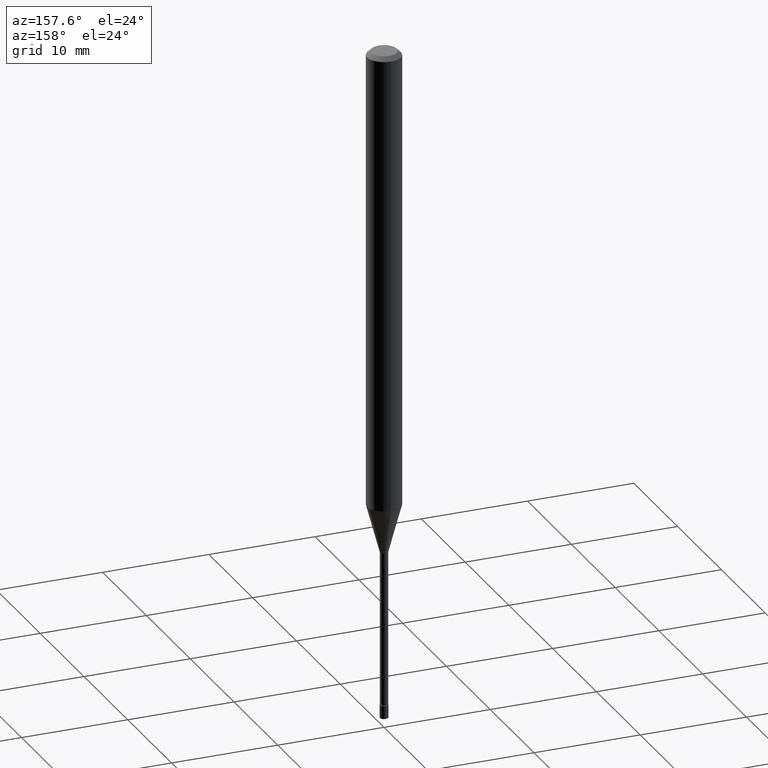
[diagram: clean part render]
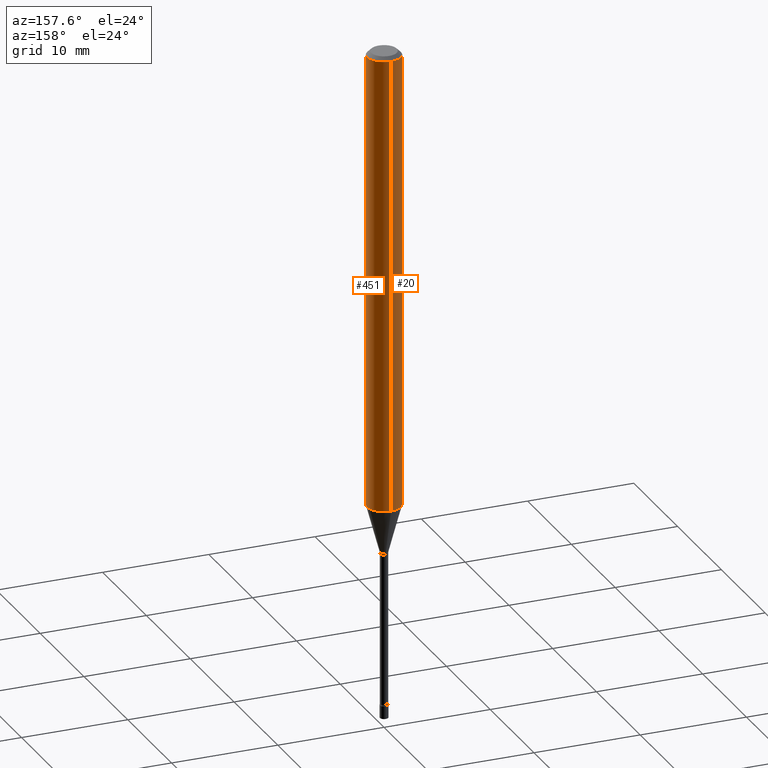
[diagram: same view with one multi-face feature highlighted, each face labeled with its STEP entity id]
A machine part, auxiliary view. The highlighted faces form ONE feature: a constant-radius fillet chain: 2 tangent blend faces with common blend radius 1.5875 mm. The faces share edges in the B-rep.
Their STEP definitions:
[1] entity #20 (Cylinder):
#16 = EDGE_LOOP ( 'NONE', ( #302, #21, #221, #185 ) ) ;
#20 = ADVANCED_FACE ( 'NONE', ( #160 ), #113, .T. ) ;
#21 = ORIENTED_EDGE ( 'NONE', *, *, #411, .T. ) ;
#32 = DIRECTION ( 'NONE',  ( -6.982962677686265922E-15, -1.000000000000000000, 4.370956789862821150E-15 ) ) ;
#38 = CARTESIAN_POINT ( 'NONE',  ( 3.668215972589017463E-31, -5.237203730476496640E-17, -0.01500000000000003067 ) ) ;
#42 = CARTESIAN_POINT ( 'NONE',  ( 4.440892098501039328E-16, 0.06249999999999404643, -1.701048163777073130 ) ) ;
#81 = LINE ( 'NONE', #148, #174 ) ;
#88 = DIRECTION ( 'NONE',  ( -6.982962677686265922E-15, -1.000000000000000000, 3.483106191921935554E-15 ) ) ;
#97 = AXIS2_PLACEMENT_3D ( 'NONE', #271, #432, #246 ) ;
#102 = CARTESIAN_POINT ( 'NONE',  ( 4.440892098501044258E-16, 0.06249999999999995143, -0.01500000000000024751 ) ) ;
#113 = CYLINDRICAL_SURFACE ( 'NONE', #97, 0.06250000000000000000 ) ;
#139 = VERTEX_POINT ( 'NONE', #288 ) ;
#146 = DIRECTION ( 'NONE',  ( -2.445477315059340608E-29, 3.491469153650990726E-15, 1.000000000000000000 ) ) ;
#148 = CARTESIAN_POINT ( 'NONE',  ( -4.364351673553916201E-16, -0.06250000000000000000, 2.182168221031869204E-16 ) ) ;
#160 = FACE_OUTER_BOUND ( 'NONE', #16, .T. ) ;
#161 = DIRECTION ( 'NONE',  ( -2.445477315059340608E-29, 3.491469153650990726E-15, 1.000000000000000000 ) ) ;
#167 = CIRCLE ( 'NONE', #427, 0.06250000000000000000 ) ;
#171 = LINE ( 'NONE', #327, #258 ) ;
#173 = CIRCLE ( 'NONE', #439, 0.06250000000000000000 ) ;
#174 = VECTOR ( 'NONE', #232, 39.37007874015748143 ) ;
#177 = EDGE_CURVE ( 'NONE', #235, #139, #81, .T. ) ;
#180 = VERTEX_POINT ( 'NONE', #102 ) ;
#185 = ORIENTED_EDGE ( 'NONE', *, *, #268, .F. ) ;
#196 = VERTEX_POINT ( 'NONE', #42 ) ;
#221 = ORIENTED_EDGE ( 'NONE', *, *, #177, .T. ) ;
#232 = DIRECTION ( 'NONE',  ( -2.445477315059340608E-29, 3.491469153650990726E-15, 1.000000000000000000 ) ) ;
#235 = VERTEX_POINT ( 'NONE', #424 ) ;
#246 = DIRECTION ( 'NONE',  ( -6.982962677686265922E-15, -1.000000000000000000, 3.491469153650990726E-15 ) ) ;
#249 = CARTESIAN_POINT ( 'NONE',  ( 4.159874696340177059E-29, -5.939157192702308277E-15, -1.701048163777072908 ) ) ;
#258 = VECTOR ( 'NONE', #487, 39.37007874015748143 ) ;
#268 = EDGE_CURVE ( 'NONE', #180, #139, #167, .T. ) ;
#271 = CARTESIAN_POINT ( 'NONE',  ( 0.000000000000000000, 0.000000000000000000, 0.000000000000000000 ) ) ;
#288 = CARTESIAN_POINT ( 'NONE',  ( -4.364351673553912750E-16, -0.06250000000000005551, -0.01499999999999981209 ) ) ;
#302 = ORIENTED_EDGE ( 'NONE', *, *, #320, .F. ) ;
#320 = EDGE_CURVE ( 'NONE', #196, #180, #171, .T. ) ;
#327 = CARTESIAN_POINT ( 'NONE',  ( 4.440892098500625669E-16, 0.06250000000000000000, -2.182168221031869204E-16 ) ) ;
#411 = EDGE_CURVE ( 'NONE', #196, #235, #173, .T. ) ;
#424 = CARTESIAN_POINT ( 'NONE',  ( -4.364351673553500570E-16, -0.06250000000000595357, -1.701048163777072464 ) ) ;
#427 = AXIS2_PLACEMENT_3D ( 'NONE', #38, #161, #88 ) ;
#432 = DIRECTION ( 'NONE',  ( -2.445477315059340608E-29, 3.491469153650990726E-15, 1.000000000000000000 ) ) ;
#439 = AXIS2_PLACEMENT_3D ( 'NONE', #249, #146, #32 ) ;
#487 = DIRECTION ( 'NONE',  ( -2.445477315059340608E-29, 3.491469153650990726E-15, 1.000000000000000000 ) ) ;
[2] entity #451 (Cylinder):
#42 = CARTESIAN_POINT ( 'NONE',  ( 4.440892098501039328E-16, 0.06249999999999404643, -1.701048163777073130 ) ) ;
#67 = ORIENTED_EDGE ( 'NONE', *, *, #320, .T. ) ;
#79 = CYLINDRICAL_SURFACE ( 'NONE', #278, 0.06250000000000000000 ) ;
#81 = LINE ( 'NONE', #148, #174 ) ;
#101 = CIRCLE ( 'NONE', #393, 0.06250000000000000000 ) ;
#102 = CARTESIAN_POINT ( 'NONE',  ( 4.440892098501044258E-16, 0.06249999999999995143, -0.01500000000000024751 ) ) ;
#104 = EDGE_CURVE ( 'NONE', #235, #196, #276, .T. ) ;
#139 = VERTEX_POINT ( 'NONE', #288 ) ;
#148 = CARTESIAN_POINT ( 'NONE',  ( -4.364351673553916201E-16, -0.06250000000000000000, 2.182168221031869204E-16 ) ) ;
#165 = DIRECTION ( 'NONE',  ( -2.445477315059340608E-29, 3.491469153650990726E-15, 1.000000000000000000 ) ) ;
#171 = LINE ( 'NONE', #327, #258 ) ;
#174 = VECTOR ( 'NONE', #232, 39.37007874015748143 ) ;
#177 = EDGE_CURVE ( 'NONE', #235, #139, #81, .T. ) ;
#180 = VERTEX_POINT ( 'NONE', #102 ) ;
#181 = EDGE_LOOP ( 'NONE', ( #375, #67, #358, #280 ) ) ;
#196 = VERTEX_POINT ( 'NONE', #42 ) ;
#200 = DIRECTION ( 'NONE',  ( -6.982962677686265922E-15, -1.000000000000000000, 3.483106191921935554E-15 ) ) ;
#232 = DIRECTION ( 'NONE',  ( -2.445477315059340608E-29, 3.491469153650990726E-15, 1.000000000000000000 ) ) ;
#235 = VERTEX_POINT ( 'NONE', #424 ) ;
#258 = VECTOR ( 'NONE', #487, 39.37007874015748143 ) ;
#276 = CIRCLE ( 'NONE', #338, 0.06250000000000000000 ) ;
#277 = CARTESIAN_POINT ( 'NONE',  ( 3.668215972589017463E-31, -5.237203730476496640E-17, -0.01500000000000003067 ) ) ;
#278 = AXIS2_PLACEMENT_3D ( 'NONE', #481, #347, #299 ) ;
#280 = ORIENTED_EDGE ( 'NONE', *, *, #177, .F. ) ;
#288 = CARTESIAN_POINT ( 'NONE',  ( -4.364351673553912750E-16, -0.06250000000000005551, -0.01499999999999981209 ) ) ;
#299 = DIRECTION ( 'NONE',  ( -6.982962677686265922E-15, -1.000000000000000000, 3.491469153650990726E-15 ) ) ;
#320 = EDGE_CURVE ( 'NONE', #196, #180, #171, .T. ) ;
#326 = CARTESIAN_POINT ( 'NONE',  ( 4.159874696340177059E-29, -5.939157192702308277E-15, -1.701048163777072908 ) ) ;
#327 = CARTESIAN_POINT ( 'NONE',  ( 4.440892098500625669E-16, 0.06250000000000000000, -2.182168221031869204E-16 ) ) ;
#338 = AXIS2_PLACEMENT_3D ( 'NONE', #326, #484, #488 ) ;
#347 = DIRECTION ( 'NONE',  ( -2.445477315059340608E-29, 3.491469153650990726E-15, 1.000000000000000000 ) ) ;
#358 = ORIENTED_EDGE ( 'NONE', *, *, #400, .F. ) ;
#375 = ORIENTED_EDGE ( 'NONE', *, *, #104, .T. ) ;
#393 = AXIS2_PLACEMENT_3D ( 'NONE', #277, #165, #200 ) ;
#400 = EDGE_CURVE ( 'NONE', #139, #180, #101, .T. ) ;
#424 = CARTESIAN_POINT ( 'NONE',  ( -4.364351673553500570E-16, -0.06250000000000595357, -1.701048163777072464 ) ) ;
#451 = ADVANCED_FACE ( 'NONE', ( #466 ), #79, .T. ) ;
#466 = FACE_OUTER_BOUND ( 'NONE', #181, .T. ) ;
#481 = CARTESIAN_POINT ( 'NONE',  ( 0.000000000000000000, 0.000000000000000000, 0.000000000000000000 ) ) ;
#484 = DIRECTION ( 'NONE',  ( -2.445477315059340608E-29, 3.491469153650990726E-15, 1.000000000000000000 ) ) ;
#487 = DIRECTION ( 'NONE',  ( -2.445477315059340608E-29, 3.491469153650990726E-15, 1.000000000000000000 ) ) ;
#488 = DIRECTION ( 'NONE',  ( -6.982962677686265922E-15, -1.000000000000000000, 4.370956789862821150E-15 ) ) ;